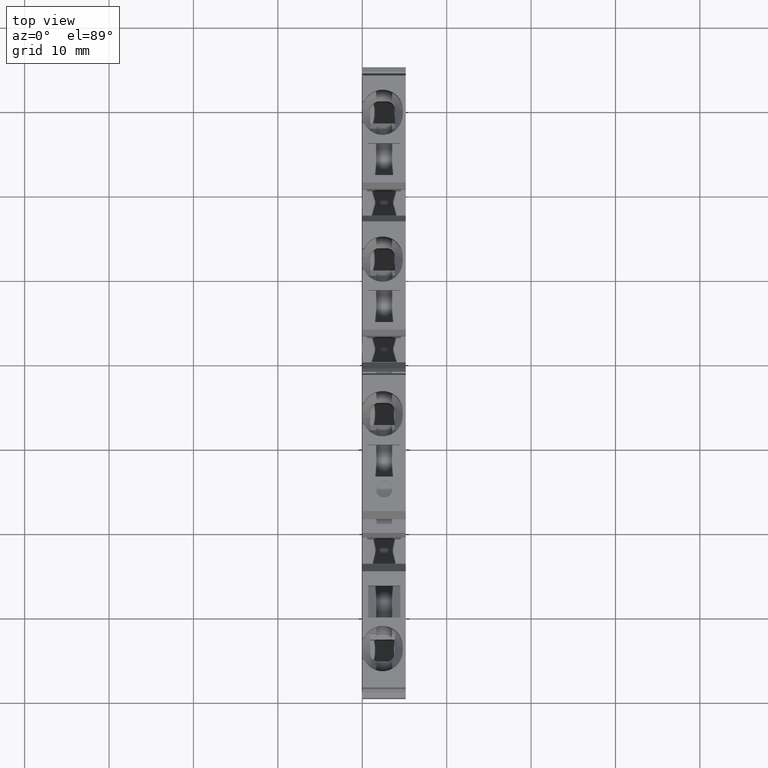
[diagram: clean part render]
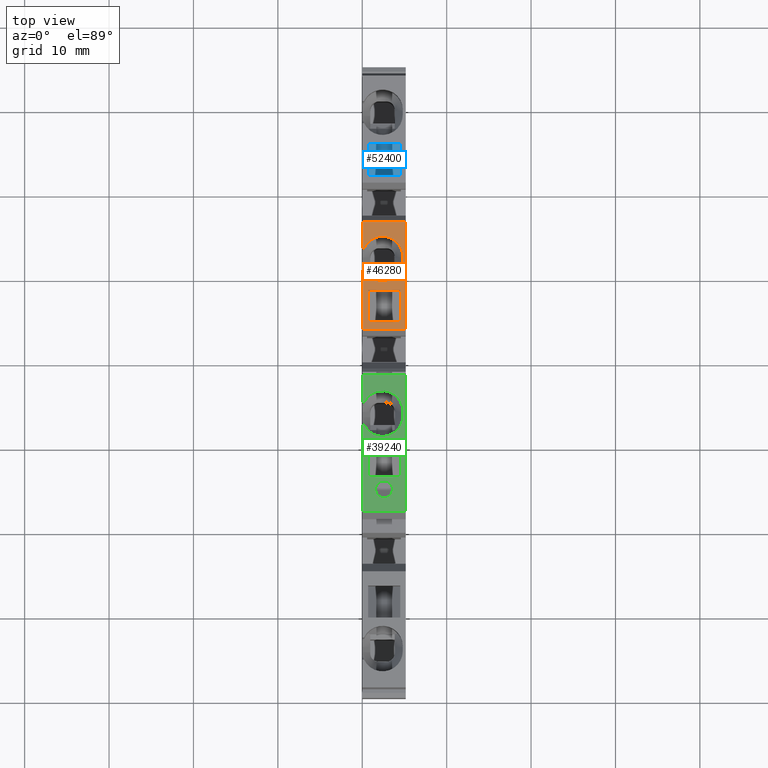
[diagram: same view with three faces highlighted in distinct colors, each labeled with its STEP entity id]
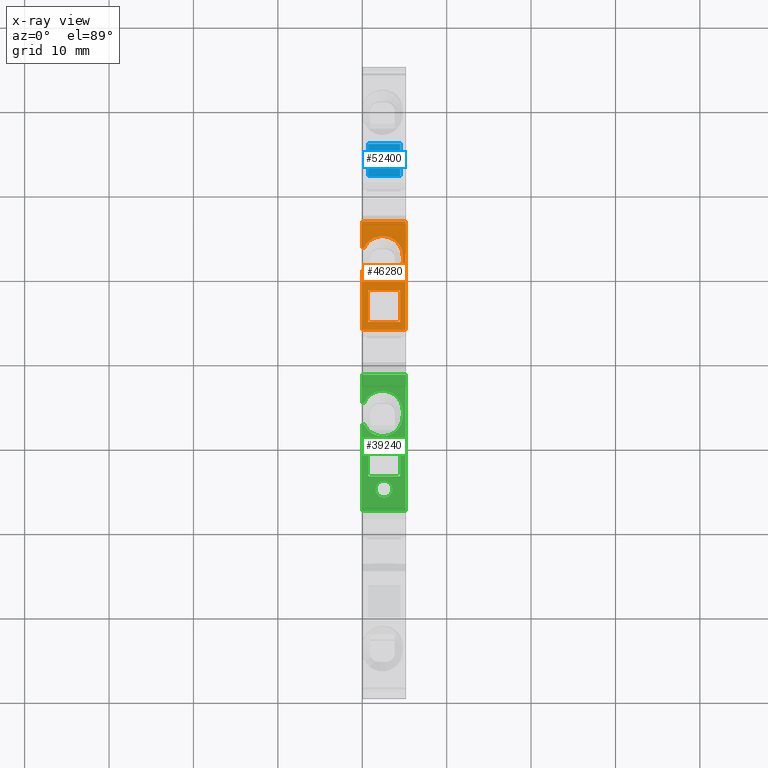
[diagram: x-ray of the same camera — body ghosted, the three highlighted faces saturated]
A machine part, top view with three faces highlighted in distinct colors.
The next image is the same camera in x-ray (body ghosted, the three faces saturated) — at least one of them is partly hidden behind the body in this view.
Their STEP definitions:

[orange] entity #46280 — the highlighted planar face has unit normal (0, -0, 1).
#11030=CARTESIAN_POINT('',(-40.7764596537315,-40.9430351956357,
2.26376927342337E-11));
#11040=DIRECTION('',(-1.48509991953226E-12,-1.35646028663828E-12,-1.));
#11050=VECTOR('',#11040,1.);
#11060=LINE('',#11030,#11050);
#11070=CARTESIAN_POINT('',(-40.7764596537314,-40.9430351956355,
0.218257577066665));
#11080=VERTEX_POINT('',#11070);
#11090=CARTESIAN_POINT('',(-40.7764596537313,-40.9430351956357,
-6.14071080705768E-12));
#11100=VERTEX_POINT('',#11090);
#11110=EDGE_CURVE('',#11080,#11100,#11060,.T.);
#12010=CARTESIAN_POINT('',(-33.960403789376,-39.1166785311999,
5.14999999999162));
#12020=VERTEX_POINT('',#12010);
#12190=CARTESIAN_POINT('',(-33.9604037893749,-39.1166785312046,
-8.38503877266139E-12));
#12200=VERTEX_POINT('',#12190);
#12230=CARTESIAN_POINT('',(-33.9604037893749,-39.1166785312046,0.));
#12240=DIRECTION('',(-2.22104378111124E-13,8.99016273766942E-13,1.));
#12250=VECTOR('',#12240,1.);
#12260=LINE('',#12230,#12250);
#12270=EDGE_CURVE('',#12200,#12020,#12260,.T.);
#31760=CARTESIAN_POINT('',(-41.7423854800341,-41.2018542407436,
2.39999999987848));
#31770=DIRECTION('',(0.258819045104028,-0.965925826288665,
9.258680102874E-13));
#31780=DIRECTION('',(0.965925826288665,0.258819045104028,
-1.81460900537107E-14));
#31790=AXIS2_PLACEMENT_3D('',#31760,#31770,#31780);
#31800=CIRCLE('',#31790,2.4);
#31810=CARTESIAN_POINT('',(-41.7423854800495,-41.201854240743,
4.79999999987848));
#31820=VERTEX_POINT('',#31810);
#31830=EDGE_CURVE('',#11080,#31820,#31800,.T.);
#33260=CARTESIAN_POINT('',(-38.4823860381923,-40.3283400229706,
2.25945957745248E-11));
#33270=DIRECTION('',(-1.48509991953228E-12,-1.35646028663829E-12,-1.));
#33280=VECTOR('',#33270,1.);
#33290=LINE('',#33260,#33280);
#33300=CARTESIAN_POINT('',(-38.4823860381829,-40.3283400229638,
4.49999999998961));
#33310=VERTEX_POINT('',#33300);
#33320=CARTESIAN_POINT('',(-38.4823860381821,-40.3283400229672,
0.699999999989608));
#33330=VERTEX_POINT('',#33320);
#33340=EDGE_CURVE('',#33310,#33330,#33290,.T.);
#35920=CARTESIAN_POINT('',(4.99978779836198E-11,-30.0170157611322,
4.49999999991847));
#35930=DIRECTION('',(-0.965925826288665,-0.258819045104028,
1.78557951189354E-12));
#35940=VECTOR('',#35930,1.);
#35950=LINE('',#35920,#35940);
#35960=CARTESIAN_POINT('',(-34.8118676763864,-39.3448275921107,
4.49999999992749));
#35970=VERTEX_POINT('',#35960);
#35980=EDGE_CURVE('',#35970,#33310,#35950,.T.);
#36590=CARTESIAN_POINT('',(-34.8118676763976,-39.344827592118,
2.2525640628152E-11));
#36600=DIRECTION('',(1.48509991953228E-12,1.35646028663829E-12,1.));
#36610=VECTOR('',#36600,1.);
#36620=LINE('',#36590,#36610);
#36630=CARTESIAN_POINT('',(-34.8118676763855,-39.3448275921141,
0.69999999993844));
#36640=VERTEX_POINT('',#36630);
#36650=EDGE_CURVE('',#36640,#35970,#36620,.T.);
#44830=CARTESIAN_POINT('',(-43.2878668020818,-41.6159647129072,
2.26848725683744E-11));
#44840=DIRECTION('',(-1.72441652782203E-13,7.13672459598231E-13,1.));
#44850=VECTOR('',#44840,1.);
#44860=LINE('',#44830,#44850);
#44870=CARTESIAN_POINT('',(-43.287866802082,-41.6159647129062,
-5.31377784051093E-12));
#44880=VERTEX_POINT('',#44870);
#44890=CARTESIAN_POINT('',(-43.2878668020821,-41.615964712906,
0.218257576946688));
#44900=VERTEX_POINT('',#44890);
#44910=EDGE_CURVE('',#44880,#44900,#44860,.T.);
#45630=CARTESIAN_POINT('',(-34.2806055741381,-39.2024763408425,
5.15000299990721));
#45640=DIRECTION('',(0.258819045104028,-0.965925826288664,
9.25867880141434E-13));
#45650=DIRECTION('',(-0.965925826288665,-0.258819045104028,
1.81460900537107E-14));
#45660=AXIS2_PLACEMENT_3D('',#45630,#45640,#45650);
#45670=PLANE('',#45660);
#45680=ORIENTED_EDGE('',*,*,#36650,.F.);
#45690=ORIENTED_EDGE('',*,*,#35980,.F.);
#45700=ORIENTED_EDGE('',*,*,#33340,.F.);
#45710=CARTESIAN_POINT('',(5.0841874620442E-11,-30.0170157611356,
0.699999999918471));
#45720=DIRECTION('',(0.965925826288665,0.258819045104028,
-1.78557951189354E-12));
#45730=VECTOR('',#45720,1.);
#45740=LINE('',#45710,#45730);
#45750=EDGE_CURVE('',#33330,#36640,#45740,.T.);
#45760=ORIENTED_EDGE('',*,*,#45750,.F.);
#45770=EDGE_LOOP('',(#45760,#45700,#45690,#45680));
#45780=FACE_BOUND('',#45770,.T.);
#45790=CARTESIAN_POINT('',(-46.3368119438312,-42.4329271014098,0.));
#45800=DIRECTION('',(2.22104378111124E-13,-8.99016273766942E-13,-1.));
#45810=VECTOR('',#45800,1.);
#45820=LINE('',#45790,#45810);
#45830=CARTESIAN_POINT('',(-46.3368119438324,-42.4329271014052,
5.1499999999957));
#45840=VERTEX_POINT('',#45830);
#45850=CARTESIAN_POINT('',(-46.3368119438312,-42.4329271014098,
-4.30984932475406E-12));
#45860=VERTEX_POINT('',#45850);
#45870=EDGE_CURVE('',#45840,#45860,#45820,.T.);
#45880=ORIENTED_EDGE('',*,*,#45870,.T.);
#45890=CARTESIAN_POINT('',(0.,-30.017015761145,5.14999999998044));
#45900=DIRECTION('',(0.965925826288664,0.258819045104028,
-3.18051140979492E-13));
#45910=VECTOR('',#45900,1.);
#45920=LINE('',#45890,#45910);
#45930=EDGE_CURVE('',#45840,#12020,#45920,.T.);
#45940=ORIENTED_EDGE('',*,*,#45930,.F.);
#45950=ORIENTED_EDGE('',*,*,#12270,.T.);
#45960=CARTESIAN_POINT('',(0.,-30.0170157611499,-1.95672070917711E-11));
#45970=DIRECTION('',(0.965925826288664,0.258819045104028,
-3.18051140979492E-13));
#45980=VECTOR('',#45970,1.);
#45990=LINE('',#45960,#45980);
#46000=EDGE_CURVE('',#11100,#12200,#45990,.T.);
#46010=ORIENTED_EDGE('',*,*,#46000,.T.);
#46020=ORIENTED_EDGE('',*,*,#11110,.T.);
#46030=ORIENTED_EDGE('',*,*,#31830,.F.);
#46040=CARTESIAN_POINT('',(4.99312466702335E-11,-30.0170157611558,
4.7999999998777));
#46050=DIRECTION('',(0.965925826288786,0.258819045103574,
-1.81460900532753E-14));
#46060=VECTOR('',#46050,1.);
#46070=LINE('',#46040,#46060);
#46080=CARTESIAN_POINT('',(-42.3219409758224,-41.3571456678054,
4.79999999987849));
#46090=VERTEX_POINT('',#46080);
#46100=EDGE_CURVE('',#46090,#31820,#46070,.T.);
#46110=ORIENTED_EDGE('',*,*,#46100,.T.);
#46120=CARTESIAN_POINT('',(-42.3219409758072,-41.3571456678057,
2.39999999988037));
#46130=DIRECTION('',(-0.258819045104028,0.965925826288665,
-9.258680102874E-13));
#46140=DIRECTION('',(-0.965925826288665,-0.258819045104028,
1.81460900537107E-14));
#46150=AXIS2_PLACEMENT_3D('',#46120,#46130,#46140);
#46160=CIRCLE('',#46150,2.4);
#46170=EDGE_CURVE('',#44900,#46090,#46160,.T.);
#46180=ORIENTED_EDGE('',*,*,#46170,.T.);
#46190=ORIENTED_EDGE('',*,*,#44910,.T.);
#46200=CARTESIAN_POINT('',(0.,-30.0170157611499,-1.95672070917711E-11));
#46210=DIRECTION('',(0.965925826288664,0.258819045104028,
-3.18051140979492E-13));
#46220=VECTOR('',#46210,1.);
#46230=LINE('',#46200,#46220);
#46240=EDGE_CURVE('',#45860,#44880,#46230,.T.);
#46250=ORIENTED_EDGE('',*,*,#46240,.T.);
#46260=EDGE_LOOP('',(#46250,#46190,#46180,#46110,#46030,#46020,#46010,
#45950,#45940,#45880));
#46270=FACE_OUTER_BOUND('',#46260,.T.);
#46280=ADVANCED_FACE('',(#45780,#46270),#45670,.T.);

[blue] entity #52400 — the highlighted planar face has unit normal (0, -0.5736, 0.8192).
#1650=CARTESIAN_POINT('',(-53.4858367097613,-36.8810638902423,
-1.69517399924231E-11));
#1660=DIRECTION('',(-1.37025109771584E-12,-1.78508192484425E-12,-1.));
#1670=VECTOR('',#1660,1.);
#1680=LINE('',#1650,#1670);
#1690=CARTESIAN_POINT('',(-53.4858367097551,-36.8810638902343,
4.49999999998306));
#1700=VERTEX_POINT('',#1690);
#1710=CARTESIAN_POINT('',(-53.4858367097603,-36.8810638902411,
0.699999999983063));
#1720=VERTEX_POINT('',#1710);
#1730=EDGE_CURVE('',#1700,#1720,#1680,.T.);
#14670=CARTESIAN_POINT('',(-70.0426930710358,-56.6127569409139,
0.700000000031582));
#14680=DIRECTION('',(-0.64278760968546,-0.766044443119884,
1.88365368005438E-12));
#14690=VECTOR('',#14680,1.);
#14700=LINE('',#14670,#14690);
#14710=CARTESIAN_POINT('',(-56.4676922535497,-40.4347009471591,
0.699999999991801));
#14720=VERTEX_POINT('',#14710);
#14730=EDGE_CURVE('',#1720,#14720,#14700,.T.);
#41880=CARTESIAN_POINT('',(-56.4676922535506,-40.4347009471604,
-8.21354298995134E-12));
#41890=DIRECTION('',(1.37025109771583E-12,1.78508192484424E-12,1.));
#41900=VECTOR('',#41890,1.);
#41910=LINE('',#41880,#41900);
#41920=CARTESIAN_POINT('',(-56.4676922535444,-40.4347009471524,
4.4999999999918));
#41930=VERTEX_POINT('',#41920);
#41940=EDGE_CURVE('',#14720,#41930,#41910,.T.);
#52240=CARTESIAN_POINT('',(-54.7726635719478,-38.414644426304,
1.19999999997105));
#52250=DIRECTION('',(0.766044443119884,-0.64278760968546,
9.7755304479217E-14));
#52260=DIRECTION('',(0.64278760968546,0.766044443119884,
-4.28039517800794E-13));
#52270=AXIS2_PLACEMENT_3D('',#52240,#52250,#52260);
#52280=PLANE('',#52270);
#52290=CARTESIAN_POINT('',(-70.0426930710308,-56.6127569409074,
4.50000000003158));
#52300=DIRECTION('',(0.64278760968546,0.766044443119884,
-1.88365368005438E-12));
#52310=VECTOR('',#52300,1.);
#52320=LINE('',#52290,#52310);
#52330=EDGE_CURVE('',#41930,#1700,#52320,.T.);
#52340=ORIENTED_EDGE('',*,*,#52330,.F.);
#52350=ORIENTED_EDGE('',*,*,#1730,.F.);
#52360=ORIENTED_EDGE('',*,*,#14730,.F.);
#52370=ORIENTED_EDGE('',*,*,#41940,.F.);
#52380=EDGE_LOOP('',(#52370,#52360,#52350,#52340));
#52390=FACE_OUTER_BOUND('',#52380,.T.);
#52400=ADVANCED_FACE('',(#52390),#52280,.T.);

[green] entity #39240 — the highlighted planar face has unit normal (0, 0, 1).
#7450=CARTESIAN_POINT('',(-18.6552069294009,-43.0390537905945,
2.94352774923714E-11));
#7460=DIRECTION('',(-1.48509991953234E-12,-1.35646028663808E-12,-1.));
#7470=VECTOR('',#7460,1.);
#7480=LINE('',#7450,#7470);
#7490=CARTESIAN_POINT('',(-18.6552069293922,-43.0390537906086,
4.49999999998973));
#7500=VERTEX_POINT('',#7490);
#7510=CARTESIAN_POINT('',(-18.6552069293911,-43.0390537906127,
0.700000000055831));
#7520=VERTEX_POINT('',#7510);
#7530=EDGE_CURVE('',#7500,#7520,#7480,.T.);
#14980=CARTESIAN_POINT('',(-14.9846885676061,-42.0555413597423,
2.93663223459991E-11));
#14990=DIRECTION('',(1.48509991953234E-12,1.35646028663808E-12,1.));
#15000=VECTOR('',#14990,1.);
#15010=LINE('',#14980,#15000);
#15020=CARTESIAN_POINT('',(-14.9846885675936,-42.0555413597629,
0.700000000055762));
#15030=VERTEX_POINT('',#15020);
#15040=CARTESIAN_POINT('',(-14.9846885675946,-42.0555413597588,
4.49999999998852));
#15050=VERTEX_POINT('',#15040);
#15060=EDGE_CURVE('',#15030,#15050,#15010,.T.);
#16680=CARTESIAN_POINT('',(6.36033439116546E-11,-38.0404061591796,
0.699999999951764));
#16690=DIRECTION('',(0.965925826288697,0.258819045103907,
-1.78557951189342E-12));
#16700=VECTOR('',#16690,1.);
#16710=LINE('',#16680,#16700);
#16720=EDGE_CURVE('',#7520,#15030,#16710,.T.);
#19190=CARTESIAN_POINT('',(6.26927159614028E-11,-38.040406159187,
4.80000000001395));
#19200=DIRECTION('',(0.965925826288786,0.258819045103574,
-1.81460900532753E-14));
#19210=VECTOR('',#19200,1.);
#19220=LINE('',#19190,#19210);
#19230=CARTESIAN_POINT('',(-22.4947618670082,-44.0678594354406,
4.80000000001422));
#19240=VERTEX_POINT('',#19230);
#19250=CARTESIAN_POINT('',(-21.9152063712352,-43.9125680083783,
4.80000000001436));
#19260=VERTEX_POINT('',#19250);
#19270=EDGE_CURVE('',#19240,#19260,#19220,.T.);
#20190=CARTESIAN_POINT('',(-14.5017256544773,-41.9261318372167,
2.57500000012797));
#20200=VERTEX_POINT('',#20190);
#20230=CARTESIAN_POINT('',(-13.5357998281884,-41.6673127921135,
2.57500000012601));
#20240=DIRECTION('',(0.258819045103151,-0.9659258262889,
1.10740570355375E-12));
#20250=DIRECTION('',(-0.9659258262889,-0.258819045103151,
1.95938293017007E-12));
#20260=AXIS2_PLACEMENT_3D('',#20230,#20240,#20250);
#20270=CIRCLE('',#20260,0.999999999999992);
#20280=CARTESIAN_POINT('',(-12.5698740018995,-41.4084937470104,
2.57500000012405));
#20290=VERTEX_POINT('',#20280);
#20300=EDGE_CURVE('',#20290,#20200,#20270,.T.);
#25890=CARTESIAN_POINT('',(-21.9152063712335,-43.9125680083647,
2.40000000001436));
#25900=DIRECTION('',(0.258819045103907,-0.965925826288697,
9.25868010287403E-13));
#25910=DIRECTION('',(0.965925826288697,0.258819045103907,
-1.81460900535952E-14));
#25920=AXIS2_PLACEMENT_3D('',#25890,#25900,#25910);
#25930=CIRCLE('',#25920,2.4);
#25940=CARTESIAN_POINT('',(-20.9492805449351,-43.6537489632774,
0.218257577089626));
#25950=VERTEX_POINT('',#25940);
#25960=EDGE_CURVE('',#25950,#19260,#25930,.T.);
#31140=CARTESIAN_POINT('',(-26.6477197686116,-45.1806411513774,
5.14999999999239));
#31150=VERTEX_POINT('',#31140);
#31180=CARTESIAN_POINT('',(-26.6477197686157,-45.1806411513698,
2.95854265553612E-11));
#31190=DIRECTION('',(2.22104378111124E-13,-8.99016273766942E-13,-1.));
#31200=VECTOR('',#31190,1.);
#31210=LINE('',#31180,#31200);
#31220=CARTESIAN_POINT('',(-26.6477197686101,-45.1806411513829,
-7.6194797115734E-12));
#31230=VERTEX_POINT('',#31220);
#31240=EDGE_CURVE('',#31150,#31230,#31210,.T.);
#33640=CARTESIAN_POINT('',(-20.9492805449401,-43.6537489632593,
2.94783744520801E-11));
#33650=DIRECTION('',(-1.48509991953232E-12,-1.35646028663807E-12,-1.));
#33660=VECTOR('',#33650,1.);
#33670=LINE('',#33640,#33660);
#33680=CARTESIAN_POINT('',(-20.949280544935,-43.6537489632777,
-9.49615510115022E-12));
#33690=VERTEX_POINT('',#33680);
#33700=EDGE_CURVE('',#25950,#33690,#33670,.T.);
#37220=CARTESIAN_POINT('',(-23.4606876932902,-44.3266784805308,
2.95255542862208E-11));
#37230=DIRECTION('',(-1.72441652782227E-13,7.13672459598225E-13,1.));
#37240=VECTOR('',#37230,1.);
#37250=LINE('',#37220,#37240);
#37260=CARTESIAN_POINT('',(-23.4606876932862,-44.3266784805459,
-8.66987454040216E-12));
#37270=VERTEX_POINT('',#37260);
#37280=CARTESIAN_POINT('',(-23.4606876932862,-44.326678480546,
0.218257577084847));
#37290=VERTEX_POINT('',#37280);
#37300=EDGE_CURVE('',#37270,#37290,#37250,.T.);
#38610=CARTESIAN_POINT('',(-11.6643185539804,-41.1658508960412,
-1.47269753792141E-10));
#38620=DIRECTION('',(0.258819045103151,-0.9659258262889,
1.10740570355375E-12));
#38630=DIRECTION('',(0.9659258262889,0.258819045103151,
1.00267016911546E-13));
#38640=AXIS2_PLACEMENT_3D('',#38610,#38620,#38630);
#38650=PLANE('',#38640);
#38660=EDGE_CURVE('',#20200,#20290,#20270,.T.);
#38670=ORIENTED_EDGE('',*,*,#38660,.F.);
#38680=ORIENTED_EDGE('',*,*,#20300,.F.);
#38690=EDGE_LOOP('',(#38680,#38670));
#38700=FACE_BOUND('',#38690,.T.);
#38710=ORIENTED_EDGE('',*,*,#7530,.F.);
#38720=ORIENTED_EDGE('',*,*,#16720,.F.);
#38730=ORIENTED_EDGE('',*,*,#15060,.F.);
#38740=CARTESIAN_POINT('',(6.27593472748323E-11,-38.0404061591762,
4.49999999995176));
#38750=DIRECTION('',(-0.965925826288697,-0.258819045103907,
1.78557951189342E-12));
#38760=VECTOR('',#38750,1.);
#38770=LINE('',#38740,#38760);
#38780=EDGE_CURVE('',#15050,#7500,#38770,.T.);
#38790=ORIENTED_EDGE('',*,*,#38780,.F.);
#38800=EDGE_LOOP('',(#38790,#38730,#38720,#38710));
#38810=FACE_BOUND('',#38800,.T.);
#38820=ORIENTED_EDGE('',*,*,#33700,.T.);
#38830=ORIENTED_EDGE('',*,*,#25960,.F.);
#38840=ORIENTED_EDGE('',*,*,#19270,.T.);
#38850=CARTESIAN_POINT('',(-22.4947618670066,-44.0678594354268,
2.40000000001421));
#38860=DIRECTION('',(-0.258819045103907,0.965925826288697,
-9.25868010287403E-13));
#38870=DIRECTION('',(-0.965925826288697,-0.258819045103907,
1.81460900535952E-14));
#38880=AXIS2_PLACEMENT_3D('',#38850,#38860,#38870);
#38890=CIRCLE('',#38880,2.40000000000001);
#38900=EDGE_CURVE('',#37290,#19240,#38890,.T.);
#38910=ORIENTED_EDGE('',*,*,#38900,.T.);
#38920=ORIENTED_EDGE('',*,*,#37300,.T.);
#38930=CARTESIAN_POINT('',(6.37588169763253E-11,-38.0404061591803,
-1.63947932515166E-11));
#38940=DIRECTION('',(0.965925826288697,0.258819045103907,
-3.18045084580466E-13));
#38950=VECTOR('',#38940,1.);
#38960=LINE('',#38930,#38950);
#38970=EDGE_CURVE('',#31230,#37270,#38960,.T.);
#38980=ORIENTED_EDGE('',*,*,#38970,.T.);
#38990=ORIENTED_EDGE('',*,*,#31240,.T.);
#39000=CARTESIAN_POINT('',(6.2614979429053E-11,-38.0404061591756,
5.14999999998361));
#39010=DIRECTION('',(0.965925826288697,0.258819045103907,
-3.18045084580466E-13));
#39020=VECTOR('',#39010,1.);
#39030=LINE('',#39000,#39020);
#39040=CARTESIAN_POINT('',(-11.0337181041744,-40.9968820147626,
5.14999999998725));
#39050=VERTEX_POINT('',#39040);
#39060=EDGE_CURVE('',#31150,#39050,#39030,.T.);
#39070=ORIENTED_EDGE('',*,*,#39060,.F.);
#39080=CARTESIAN_POINT('',(-11.0337181041689,-40.996882014739,
2.92920985662043E-11));
#39090=DIRECTION('',(2.22104378111124E-13,-8.99016273766942E-13,-1.));
#39100=VECTOR('',#39090,1.);
#39110=LINE('',#39080,#39100);
#39120=CARTESIAN_POINT('',(-11.0337181041734,-40.9968820147683,
-1.27620119503425E-11));
#39130=VERTEX_POINT('',#39120);
#39140=EDGE_CURVE('',#39050,#39130,#39110,.T.);
#39150=ORIENTED_EDGE('',*,*,#39140,.F.);
#39160=CARTESIAN_POINT('',(6.37588169763253E-11,-38.0404061591803,
-1.63947932515166E-11));
#39170=DIRECTION('',(0.965925826288697,0.258819045103907,
-3.18045084580466E-13));
#39180=VECTOR('',#39170,1.);
#39190=LINE('',#39160,#39180);
#39200=EDGE_CURVE('',#33690,#39130,#39190,.T.);
#39210=ORIENTED_EDGE('',*,*,#39200,.T.);
#39220=EDGE_LOOP('',(#39210,#39150,#39070,#38990,#38980,#38920,#38910,
#38840,#38830,#38820));
#39230=FACE_OUTER_BOUND('',#39220,.T.);
#39240=ADVANCED_FACE('',(#38700,#38810,#39230),#38650,.T.);